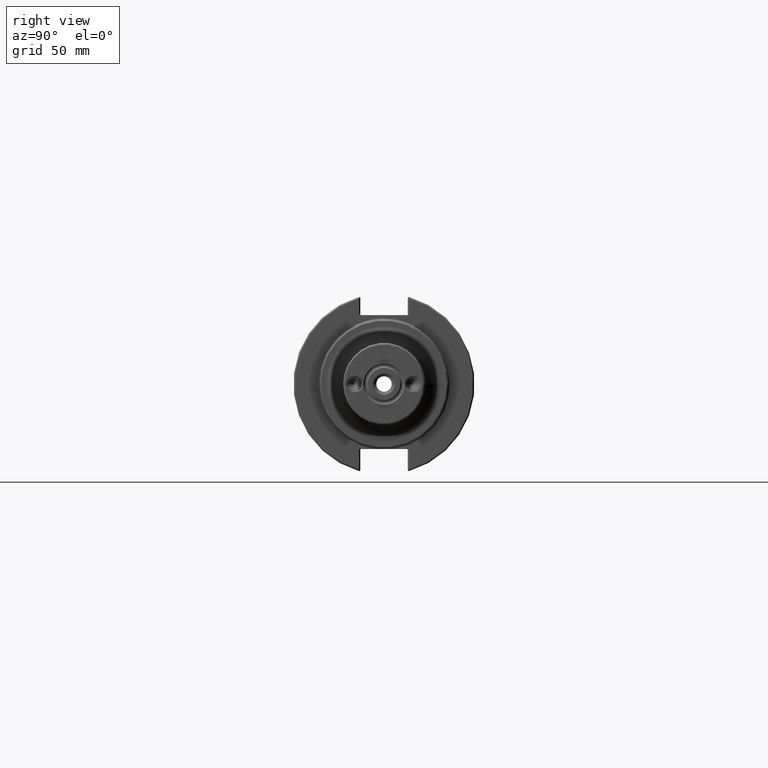
[diagram: clean part render]
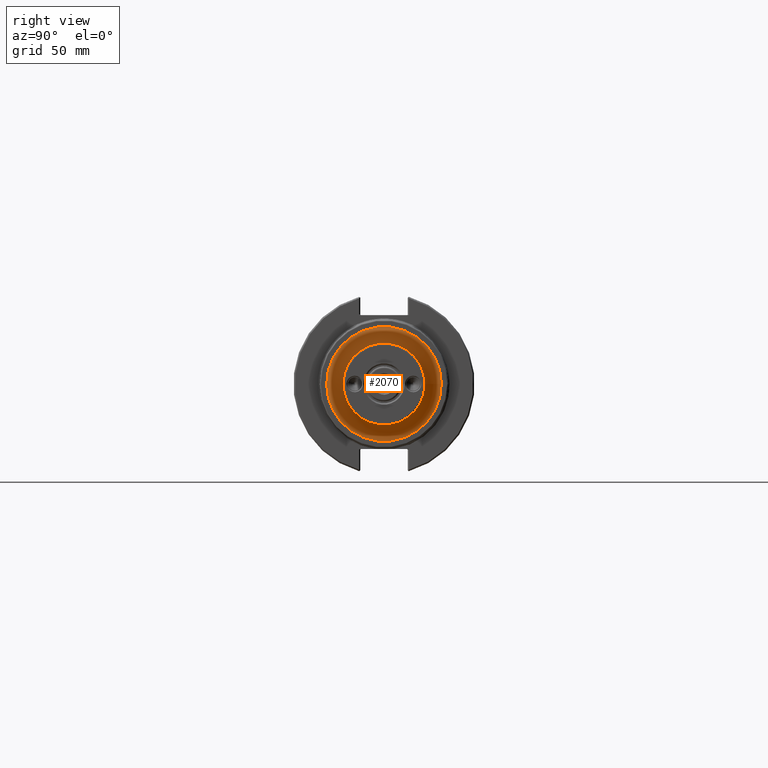
[diagram: same view with one face highlighted and labeled with its STEP entity id]
A machine part, right view. The second image highlights one B-rep face of the part: STEP entity #2070.
In plain terms, the highlighted toroidal blend (fillet) surface has major radius 31.115 mm and minor (blend) radius 8.89 mm.
Its self-contained STEP definition (entity closure, byte-faithful):
#250=TOROIDAL_SURFACE('',#2228,1.225,0.35);
#447=FACE_BOUND('',#775,.T.);
#517=CIRCLE('',#2229,0.875000000000001);
#518=CIRCLE('',#2230,1.225);
#637=FACE_OUTER_BOUND('',#774,.T.);
#774=EDGE_LOOP('',(#1479));
#775=EDGE_LOOP('',(#1480));
#998=VERTEX_POINT('',#3199);
#999=VERTEX_POINT('',#3201);
#1199=EDGE_CURVE('',#998,#998,#517,.T.);
#1200=EDGE_CURVE('',#999,#999,#518,.T.);
#1479=ORIENTED_EDGE('',*,*,#1199,.T.);
#1480=ORIENTED_EDGE('',*,*,#1200,.T.);
#2070=ADVANCED_FACE('',(#637,#447),#250,.F.);
#2228=AXIS2_PLACEMENT_3D('',#3198,#2505,#2506);
#2229=AXIS2_PLACEMENT_3D('',#3200,#2507,#2508);
#2230=AXIS2_PLACEMENT_3D('',#3202,#2509,#2510);
#2505=DIRECTION('center_axis',(-1.,0.,0.));
#2506=DIRECTION('ref_axis',(0.,0.,1.));
#2507=DIRECTION('center_axis',(-1.,0.,0.));
#2508=DIRECTION('ref_axis',(0.,-1.,-1.22464679914735E-16));
#2509=DIRECTION('center_axis',(1.,0.,0.));
#2510=DIRECTION('ref_axis',(0.,-1.,-1.22464679914735E-16));
#3198=CARTESIAN_POINT('Origin',(1.73,6.48343679744594E-49,0.));
#3199=CARTESIAN_POINT('',(1.73,0.875000000000001,0.));
#3200=CARTESIAN_POINT('Origin',(1.73,6.48343679744594E-49,0.));
#3201=CARTESIAN_POINT('',(1.38,1.225,3.00038465791102E-16));
#3202=CARTESIAN_POINT('Origin',(1.38,6.48343679744594E-49,0.));